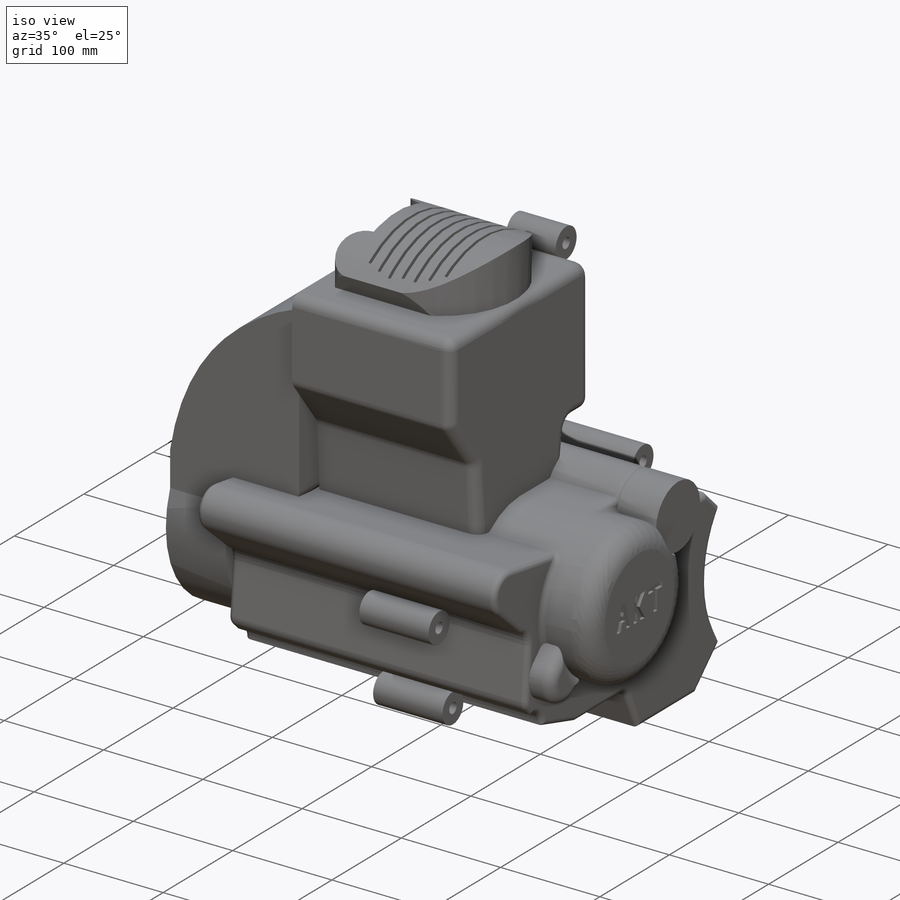
[diagram: iso view]
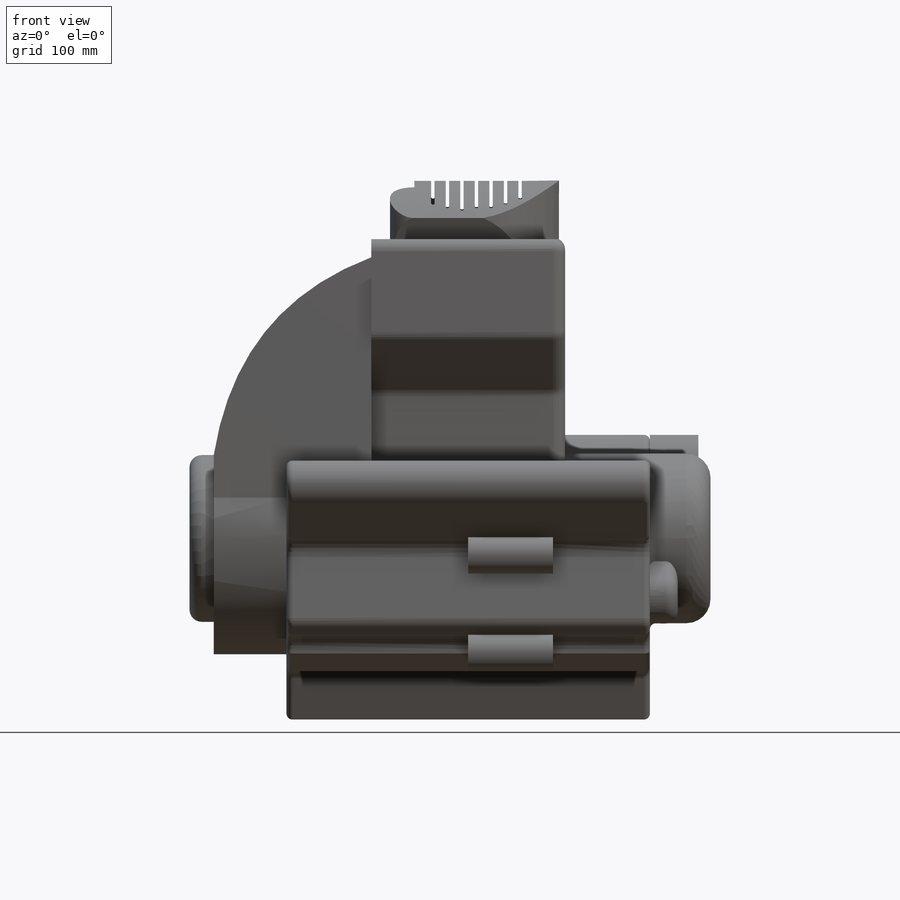
[diagram: front view]
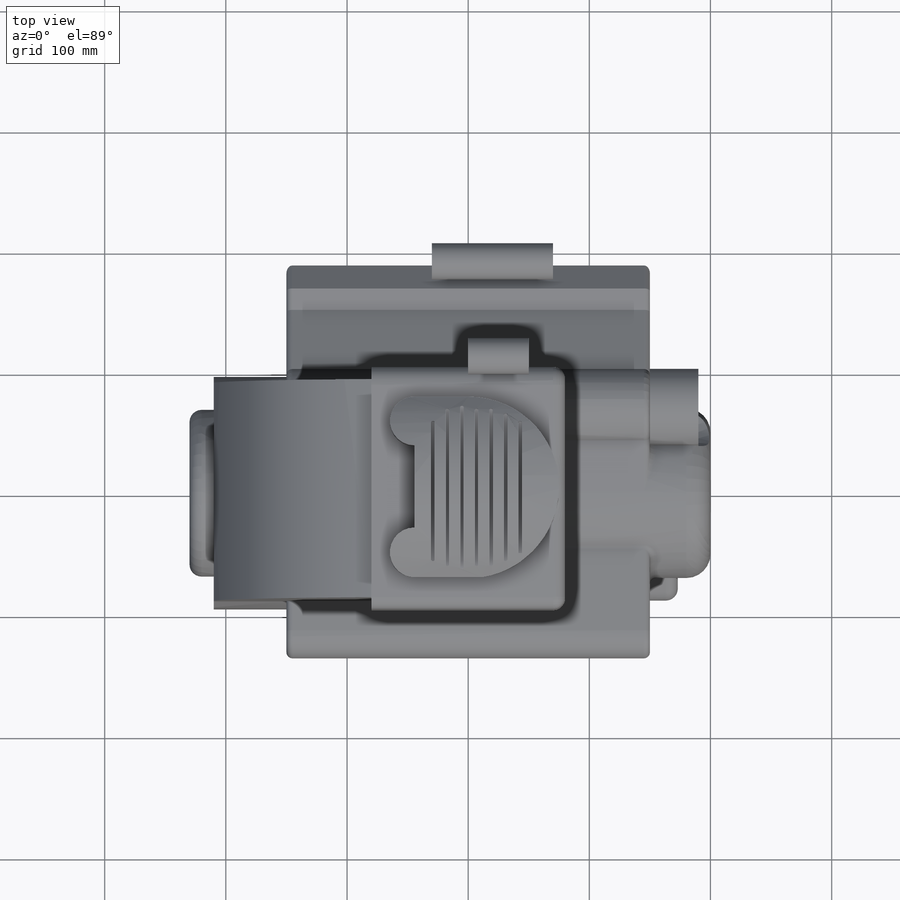
[diagram: top view]
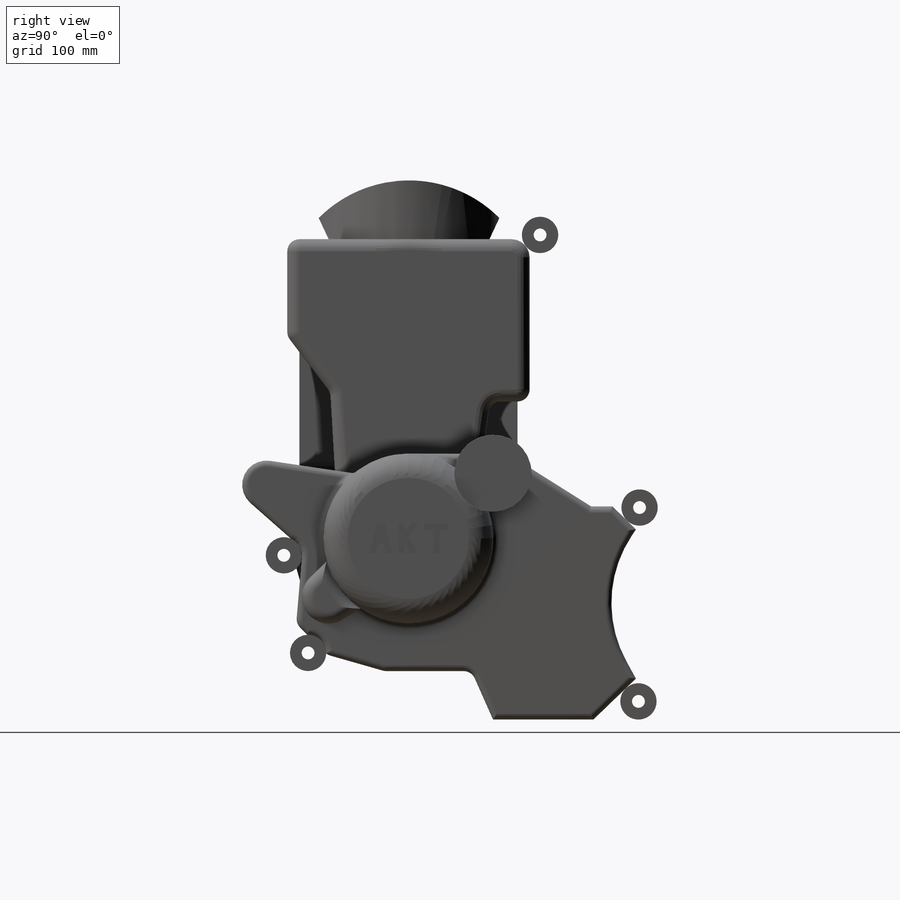
[diagram: right view]
SOLIDWORKS PART (.sldprt)
format: sldprt  version: not decoded by parser v0  size: 1,216,512 bytes
history: native  units: mm
features: sketch x26, extrude x12, plane x7, fillet x5, cut_extrude x4, material x1 (+12 scaffold rows collapsed; 2 parser-record rows omitted)
feature tree (69):
  scaffold x12  (default folders/planes/origin — collapsed)
  material  "Material <sin especificar>"
  plane  "Alzado"
  plane  "Planta"
  plane  "Vista lateral"
  parser-record x2  (decoder bookkeeping rows leaked as tree rows — omitted from the tree; the rows remain in map.json)
  sketch  "Croquis1"  dims[c1.D10=30.0mm c1.D11=30.0mm c1.D12=30.0mm c1.D13=30.0mm c1.D14=30.0mm c1.D2=30.0mm c1.D4=30.0mm c1.D16=140.0mm c1.D21=100.0mm c1.D24=30.0mm c1.D1=400.0mm c2.D2=300.0mm c2.D3=200.0mm c2.D4=150.0mm c2.D5=40.0mm c2.D6=120.0mm c2.D7=160.0mm c2.D8=200.0mm c2.D9=40.0mm c2.D10=~97.449206mm c3.D2=175.0mm c3.D3=180.0mm c3.D7=~17.737346mm c4.D7=65.0deg c4.D15=~17.467247mm c5.D15=65.0deg c5.D17=20.0mm c5.D18=200.0mm c5.D19=100.0mm c5.D20=100.0mm c5.D21=~101.514062mm c6.D20=75.0mm c6.D8=445.0mm c6.D22=80.0mm c6.D23=50.0mm c6.D24=~57.566682mm c7.D24=~23.392164deg c8.D24=~54.299111mm]
  sketch  "Croquis3"  dims[c1.D1=20.0mm c1.D2=10.0mm c2.D1=20.0mm c2.D2=70.0mm]
  extrude  "Saliente-Extruir1"  Depth=300mm
  sketch  "Croquis4"
  extrude  "Saliente-Extruir2"  Depth=200mm
  sketch  "Croquis5"  dims[D1=10.0mm]
  extrude  "Saliente-Extruir3"  Depth=160mm
  sketch  "Croquis6"  dims[D1=10.6mm]
  extrude  "Saliente-Extruir4"  Depth=70mm
  sketch  "Croquis7"  dims[D1=10.6mm]
  extrude  "Saliente-Extruir5"  Depth=70mm
  sketch  "Croquis8"  dims[D1=10.6mm D3=30.0mm D2=400.0mm]
  extrude  "Saliente-Extruir6"  Depth=50mm
  fillet  "Redondeo6"  Radius=20mm
  fillet  "Redondeo7"  Radius=5mm
  sketch  "Croquis9"  dims[D2=10.0mm D1=130.0mm]
  extrude  "Saliente-Extruir10"  Depth=180mm
  sketch  "Croquis10"
  extrude  "Saliente-Extruir11"  [1 undecoded]
  sketch  "Croquis11"
  extrude  "Saliente-Extruir12"  Depth=20mm
  sketch  "Croquis13"
  extrude  "Saliente-Extruir13"  Depth=40mm
  sketch  "Croquis14"
  extrude  "Saliente-Extruir14"  Depth=150mm
  sketch  "Croquis15"
  cut_extrude  "Cortar-Extruir2"  Depth=150mm
  fillet  "Redondeo8"  Radius=10mm
  plane  "Plano1"
  sketch  "Croquis16"  dims[D3=1.0mm D1=7.0 D2=7.0]
  cut_extrude  "Cortar-Extruir3"  Depth=30mm
  fillet  "Redondeo10"  Radius=10mm
  sketch  "Croquis17"
  cut_extrude  "Cortar-Extruir4"  Depth=10mm
  sketch  "Croquis18"  dims[c1.D1=5.0mm c1.D2=5.0mm c1.D3=5.0mm c1.D4=5.0mm c1.D5=5.0mm c1.D6=7.0mm c1.D7=5.0mm c1.D8=8.0mm c1.D9=3.0mm c1.D10=5.0mm c1.D11=5.0mm c1.D12=5.0mm c1.D13=5.0mm c1.D14=3.0mm c1.D15=5.0mm c1.D16=9.0mm c2.D14=6.0mm c2.D17=5.0mm]
  cut_extrude  "Cortar-Extruir5"  Depth=3mm
  sketch  "Croquis19"
  extrude  "Saliente-Extruir15"  Depth=23mm
  fillet  "Redondeo11"  Radius=10mm
  sketch  "Distancia entre centros"  dims[c1.D1=100.0mm c2.D1=15.0mm c3.D1=50.0mm c4.D1=~24.221059mm c5.D1=~448.027022mm c6.D1=~34.21564mm c7.D1=~59.237292mm c8.D1=81.9606mm c9.D1=~26.984263mm c10.D1=~34.115109mm c11.D1=50.0mm c12.D1=~18.794357mm c13.D1=~81.557262mm c14.D1=~11.422265mm c15.D1=~191.604745mm c16.D1=~50.487768mm]
  plane  "Soporte motor vertical"
  sketch  "Croquis21"  dims[c1.D1=10.6mm c1.D2=10.6mm c2.D1=~159.997515mm]
  plane  "Soporte motor horizontal"
  sketch  "Croquis22"  dims[D1=100.0mm D2=10.6mm]
  sketch  "Croquis3D1"  dims[D1=70.0mm D2=20.0mm D3=~80.570537mm]
  plane  "Plano2"
  sketch  "Croquis23"  dims[D1=~307.991444mm]
  sketch  "Croquis24"  dims[D1=100.0mm]
  sketch  "Croquis25"  dims[D1=~69.724856mm]
  sketch  "Croquis26"  dims[c1.D1=10.6mm c1.D5=10.6mm c1.D6=10.6mm c2.D1=~237.183143mm c2.D2=~141.032187mm c2.D3=~122.967452mm c2.D4=~80.901017mm c2.D5=~119.997515mm c2.D6=~273.591635mm c2.D7=192.7758mm c3.D7=~3.60919deg c3.D8=~113.951749mm c4.D8=~70.331426deg c5.D8=~131.744074mm c6.D8=~71.623167deg]
  sketch  "Croquis30"
decode coverage: 37 of 47 modeling features carry decoded parameters
note: ~ marks probable driven/reference dimensions
note: 1 parameter value undecoded
note: suppression state not decoded; provenance and decode notes live in map.json
